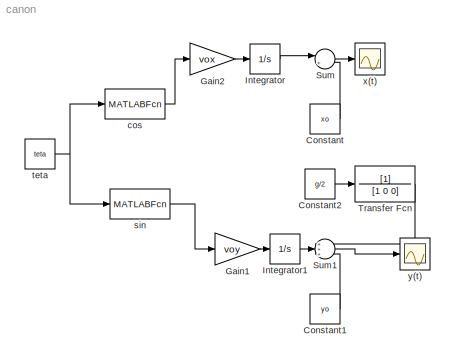
MODEL canon
KIND model
BLOCK [Constant] Constant
  SID = 1
  Value = xo
BLOCK [Constant] Constant1
  SID = 2
  Value = yo
BLOCK [Constant] Constant2
  SID = 3
  Value = g/2
BLOCK [Gain] Gain1
  Gain = voy
  OutDataTypeStr = Inherit: Inherit via internal rule
  ParamDataTypeStr = Inherit: Inherit via internal rule
  SID = 4
  SaturateOnIntegerOverflow = off
BLOCK [Gain] Gain2
  Gain = vox
  OutDataTypeStr = Inherit: Inherit via internal rule
  ParamDataTypeStr = Inherit: Inherit via internal rule
  SID = 5
  SaturateOnIntegerOverflow = off
BLOCK [Integrator] Integrator
  Ports = [1, 1]
  SID = 6
BLOCK [Integrator] Integrator1
  Ports = [1, 1]
  SID = 7
BLOCK [Sum] Sum
  IconShape = round
  InputSameDT = off
  Inputs = |++
  OutDataTypeStr = Inherit: Inherit via internal rule
  Ports = [2, 1]
  SID = 8
  SaturateOnIntegerOverflow = off
BLOCK [Sum] Sum1
  IconShape = round
  InputSameDT = off
  Inputs = +++
  OutDataTypeStr = Inherit: Inherit via internal rule
  Ports = [3, 1]
  SID = 9
  SaturateOnIntegerOverflow = off
BLOCK [TransferFcn] Transfer Fcn
  Denominator = [1 0 0]
  SID = 10
BLOCK [MATLABFcn] cos
  MATLABFcn = cos
  Ports = [1, 1]
  SID = 11
BLOCK [MATLABFcn] sin
  Ports = [1, 1]
  SID = 12
BLOCK [Constant] teta
  SID = 13
  Value = teta
BLOCK [Scope] x(t)
  Floating = off
  NumInputPorts = 1
  Ports = [1]
  SID = 14
  ScopeSpecificationString = Simulink.scopes.TimeScopeBlockCfg('CurrentConfiguration', extmgr.ConfigurationSet(extmgr.Configuration('Core','General UI',true),extmgr.Configuration('Core','Source UI',true),extmgr.Configuration('Sources','WiredSimulink',true,'DataLoggingSaveFormat','StructureWithTime','DataLoggingLimitDataPoints',true,'DataLoggingDecimation','1','DataLoggingDecimateData',true),extmgr.Configuration('Visuals','Tim...<+872ch>
BLOCK [Scope] y(t)
  Floating = off
  NumInputPorts = 1
  Ports = [1]
  SID = 15
  ScopeSpecificationString = C++SS(StrPVP('Location','[188, 390, 512, 629]'),StrPVP('Open','off'),MxPVP('AxesTitles',54,'struct(''axes1'',''%<SignalLabel>'')'),StrPVP('SaveName','ScopeData1'),StrPVP('DataFormat','StructureWithTime'),StrPVP('LimitDataPoints','on'),StrPVP('Decimation','1'),StrPVP('BlockParamSampleInput','off'))
LINE Constant1:1 -> Sum1:3
LINE Constant2:1 -> Transfer Fcn:1
LINE Constant:1 -> Sum:2
LINE Gain1:1 -> Integrator1:1
LINE Gain2:1 -> Integrator:1
LINE Integrator1:1 -> Sum1:2
LINE Integrator:1 -> Sum:1
LINE Sum1:1 -> y(t):1
LINE Sum:1 -> x(t):1
LINE Transfer Fcn:1 -> Sum1:1
LINE cos:1 -> Gain2:1
LINE sin:1 -> Gain1:1
NET teta:1 -> cos:1, sin:1
note: NET lines group one-source signal fan-out (src -> all destinations, sorted); 1:1 wires keep LINE
